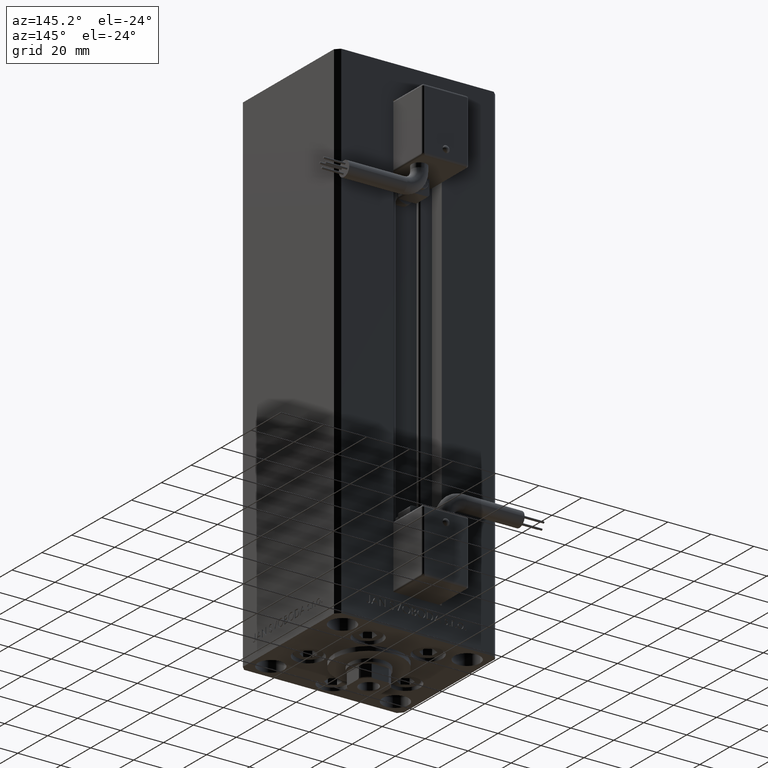
[diagram: clean part render]
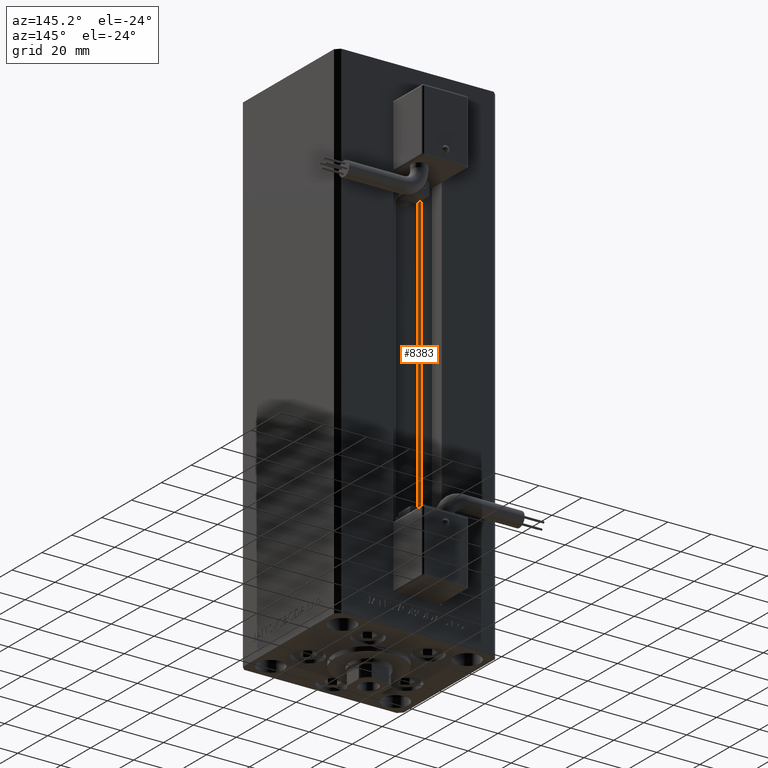
[diagram: same view with one face highlighted and labeled with its STEP entity id]
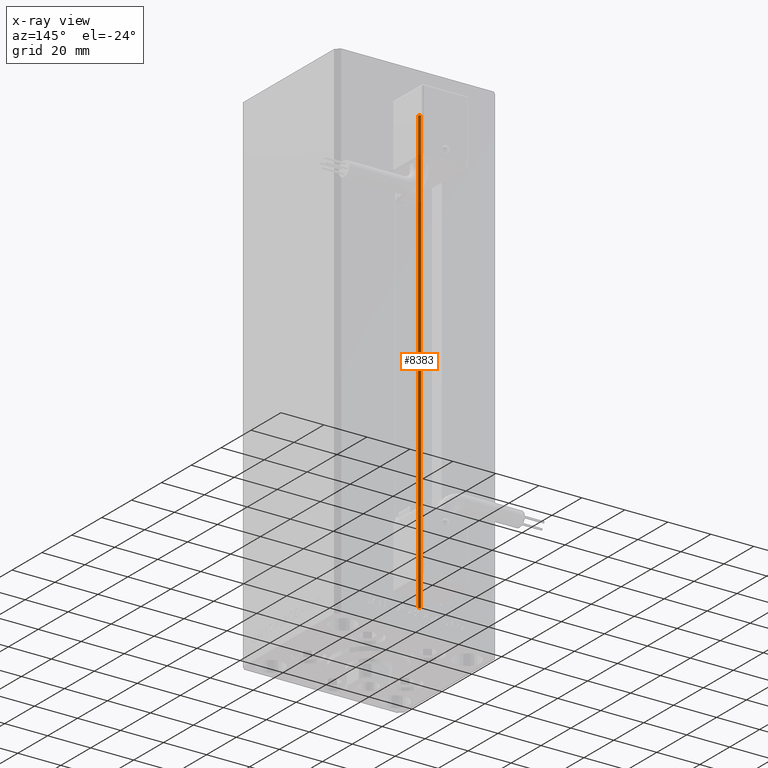
[diagram: x-ray of the same camera — body ghosted, the highlighted face saturated]
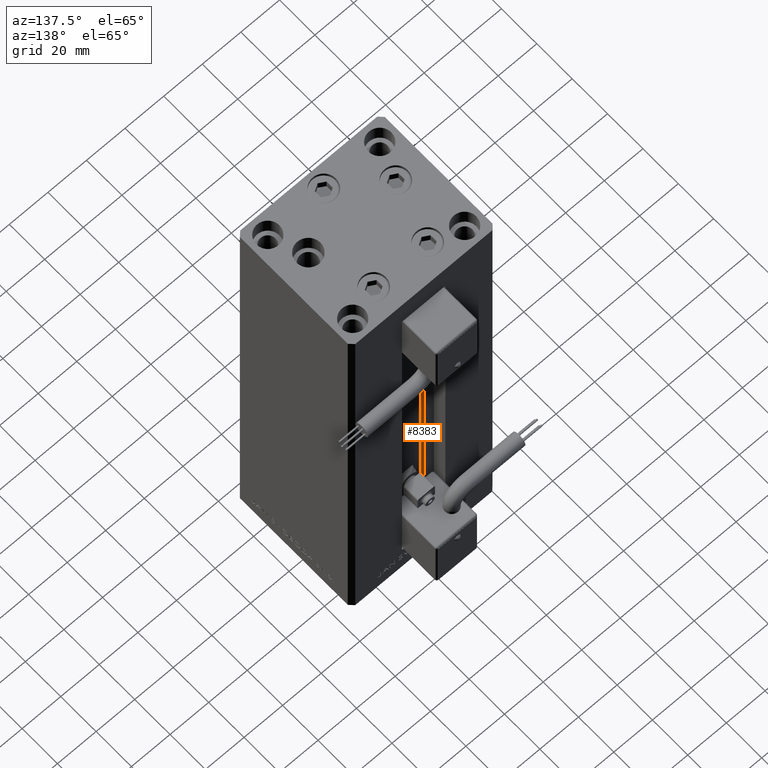
[diagram: same view with one face highlighted and labeled with its STEP entity id]
A machine part, auxiliary view. The second image highlights one B-rep face of the part: STEP entity #8383.
The next image is the same camera in x-ray: the body ghosted, the highlighted face saturated — about 13% of this face is hidden behind the body in this view.
A second angle (auxiliary view) of the same face is appended — the face is thin or edge-on in the first view.
In plain terms, the highlighted cylindrical surface (edge-blend (fillet) strip) has radius 0.9333 mm, axis along (0, 0, 1).
Its self-contained STEP definition (entity closure, byte-faithful):
#806 = DIRECTION ( 'NONE',  ( 0.000000000000000000, 0.000000000000000000, -1.000000000000000000 ) ) ;
#1481 = EDGE_LOOP ( 'NONE', ( #41678, #17619, #14340, #43797 ) ) ;
#2836 = CARTESIAN_POINT ( 'NONE',  ( -6.183333333334001480, 25.06666666666599141, 0.000000000000000000 ) ) ;
#2919 = AXIS2_PLACEMENT_3D ( 'NONE', #36142, #28156, #35879 ) ;
#4876 = LINE ( 'NONE', #5133, #23949 ) ;
#5133 = CARTESIAN_POINT ( 'NONE',  ( -6.183333333334001480, 25.99999999999999289, 0.000000000000000000 ) ) ;
#6259 = CIRCLE ( 'NONE', #43732, 0.9333333333340008142 ) ;
#6633 = AXIS2_PLACEMENT_3D ( 'NONE', #2836, #19347, #31625 ) ;
#6707 = VECTOR ( 'NONE', #50477, 1000.000000000000000 ) ;
#7476 = EDGE_CURVE ( 'NONE', #52446, #23277, #6259, .T. ) ;
#8383 = ADVANCED_FACE ( 'NONE', ( #40130 ), #15869, .T. ) ;
#11018 = CARTESIAN_POINT ( 'NONE',  ( -5.250000000000000000, 25.06666666666599141, 0.000000000000000000 ) ) ;
#14340 = ORIENTED_EDGE ( 'NONE', *, *, #36880, .T. ) ;
#15869 = CYLINDRICAL_SURFACE ( 'NONE', #2919, 0.9333333333340008142 ) ;
#16165 = VERTEX_POINT ( 'NONE', #52503 ) ;
#17394 = DIRECTION ( 'NONE',  ( -0.000000000000000000, -0.000000000000000000, 1.000000000000000000 ) ) ;
#17619 = ORIENTED_EDGE ( 'NONE', *, *, #26953, .F. ) ;
#19347 = DIRECTION ( 'NONE',  ( -0.000000000000000000, -0.000000000000000000, -1.000000000000000000 ) ) ;
#23277 = VERTEX_POINT ( 'NONE', #39893 ) ;
#23949 = VECTOR ( 'NONE', #17394, 1000.000000000000000 ) ;
#26953 = EDGE_CURVE ( 'NONE', #16165, #33953, #49212, .T. ) ;
#28156 = DIRECTION ( 'NONE',  ( -0.000000000000000000, -0.000000000000000000, 1.000000000000000000 ) ) ;
#29082 = CARTESIAN_POINT ( 'NONE',  ( -6.183333333334001480, 25.06666666666599141, 206.0000000000000000 ) ) ;
#29800 = CARTESIAN_POINT ( 'NONE',  ( -5.250000000000000000, 25.06666666666599141, 0.000000000000000000 ) ) ;
#31625 = DIRECTION ( 'NONE',  ( 1.000000000000000000, 0.000000000000000000, 0.000000000000000000 ) ) ;
#33953 = VERTEX_POINT ( 'NONE', #29800 ) ;
#34247 = LINE ( 'NONE', #11018, #6707 ) ;
#35879 = DIRECTION ( 'NONE',  ( 1.000000000000000000, 0.000000000000000000, 0.000000000000000000 ) ) ;
#36142 = CARTESIAN_POINT ( 'NONE',  ( -6.183333333334001480, 25.06666666666599141, 0.000000000000000000 ) ) ;
#36556 = DIRECTION ( 'NONE',  ( 1.000000000000000000, 0.000000000000000000, 0.000000000000000000 ) ) ;
#36880 = EDGE_CURVE ( 'NONE', #16165, #52446, #4876, .T. ) ;
#39893 = CARTESIAN_POINT ( 'NONE',  ( -5.250000000000000000, 25.06666666666599141, 206.0000000000000000 ) ) ;
#40130 = FACE_OUTER_BOUND ( 'NONE', #1481, .T. ) ;
#41678 = ORIENTED_EDGE ( 'NONE', *, *, #44080, .F. ) ;
#43732 = AXIS2_PLACEMENT_3D ( 'NONE', #29082, #806, #36556 ) ;
#43797 = ORIENTED_EDGE ( 'NONE', *, *, #7476, .T. ) ;
#44080 = EDGE_CURVE ( 'NONE', #33953, #23277, #34247, .T. ) ;
#49212 = CIRCLE ( 'NONE', #6633, 0.9333333333340008142 ) ;
#50477 = DIRECTION ( 'NONE',  ( -0.000000000000000000, -0.000000000000000000, 1.000000000000000000 ) ) ;
#52446 = VERTEX_POINT ( 'NONE', #52632 ) ;
#52503 = CARTESIAN_POINT ( 'NONE',  ( -6.183333333334001480, 25.99999999999999289, 0.000000000000000000 ) ) ;
#52632 = CARTESIAN_POINT ( 'NONE',  ( -6.183333333334001480, 25.99999999999999289, 206.0000000000000000 ) ) ;